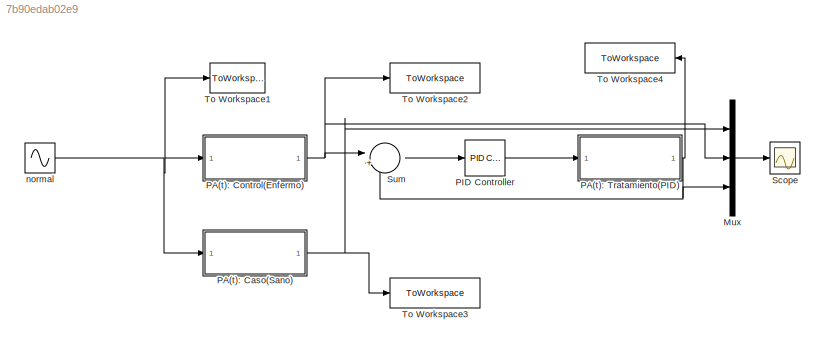
MODEL slx_7b90edab02e9
KIND model
CONFIG AbsTol = auto
CONFIG EnableMultiTasking = off
CONFIG FixedStep = auto
CONFIG MaxStep = 1e-3
CONFIG MinStep = auto
CONFIG RelTol = 1e-3
CONFIG SampleTimeConstraint = Unconstrained
CONFIG SolverName = ode15s
CONFIG StartTime = 0
CONFIG StopTime = 30
BLOCK [Mux] Mux
  DisplayOption = bar
  Inputs = 3
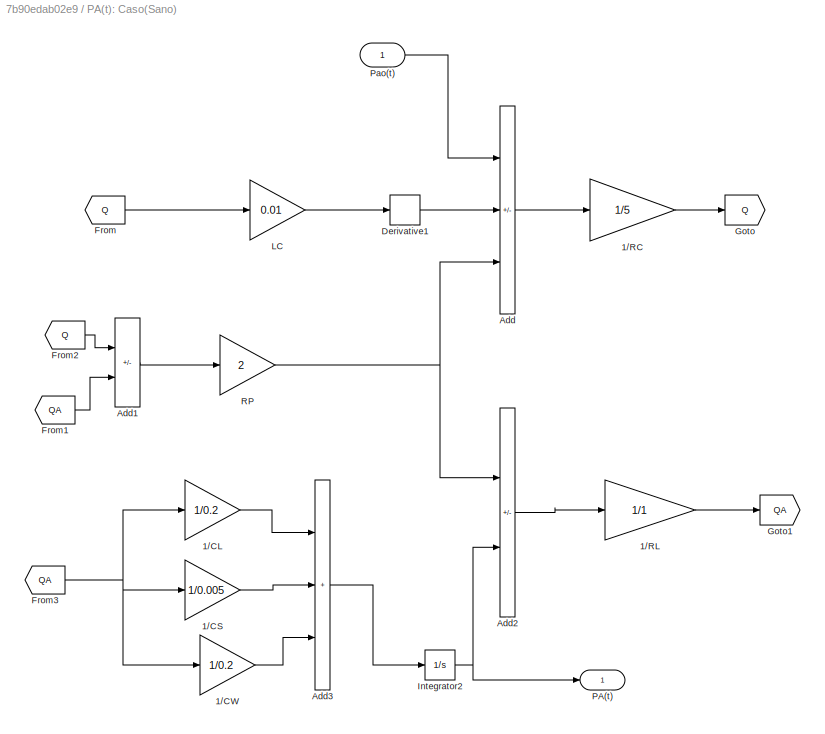
BLOCK [SubSystem] PA(t): Caso(Sano)
BLOCK [Gain] PA(t): Caso(Sano)/1//CL
  Gain = 1/0.2
BLOCK [Gain] PA(t): Caso(Sano)/1//CS
  Gain = 1/0.005
BLOCK [Gain] PA(t): Caso(Sano)/1//CW
  Gain = 1/0.2
BLOCK [Gain] PA(t): Caso(Sano)/1//RC
  Gain = 1/5
BLOCK [Gain] PA(t): Caso(Sano)/1//RL
  Gain = 1/1
BLOCK [Sum] PA(t): Caso(Sano)/Add
  IconShape = rectangular
  Inputs = +--
BLOCK [Sum] PA(t): Caso(Sano)/Add1
  IconShape = rectangular
  Inputs = +-
BLOCK [Sum] PA(t): Caso(Sano)/Add2
  IconShape = rectangular
  Inputs = +-
BLOCK [Sum] PA(t): Caso(Sano)/Add3
  IconShape = rectangular
  Inputs = +++
BLOCK [Derivative] PA(t): Caso(Sano)/Derivative1
BLOCK [From] PA(t): Caso(Sano)/From
  GotoTag = Q
BLOCK [From] PA(t): Caso(Sano)/From1
  GotoTag = QA
BLOCK [From] PA(t): Caso(Sano)/From2
  GotoTag = Q
BLOCK [From] PA(t): Caso(Sano)/From3
  GotoTag = QA
BLOCK [Goto] PA(t): Caso(Sano)/Goto
  GotoTag = Q
BLOCK [Goto] PA(t): Caso(Sano)/Goto1
  GotoTag = QA
BLOCK [Integrator] PA(t): Caso(Sano)/Integrator2
BLOCK [Gain] PA(t): Caso(Sano)/LC
  Gain = 0.01
BLOCK [Outport] PA(t): Caso(Sano)/PA(t)
BLOCK [Inport] PA(t): Caso(Sano)/Pao(t)
BLOCK [Gain] PA(t): Caso(Sano)/RP
  Gain = 2
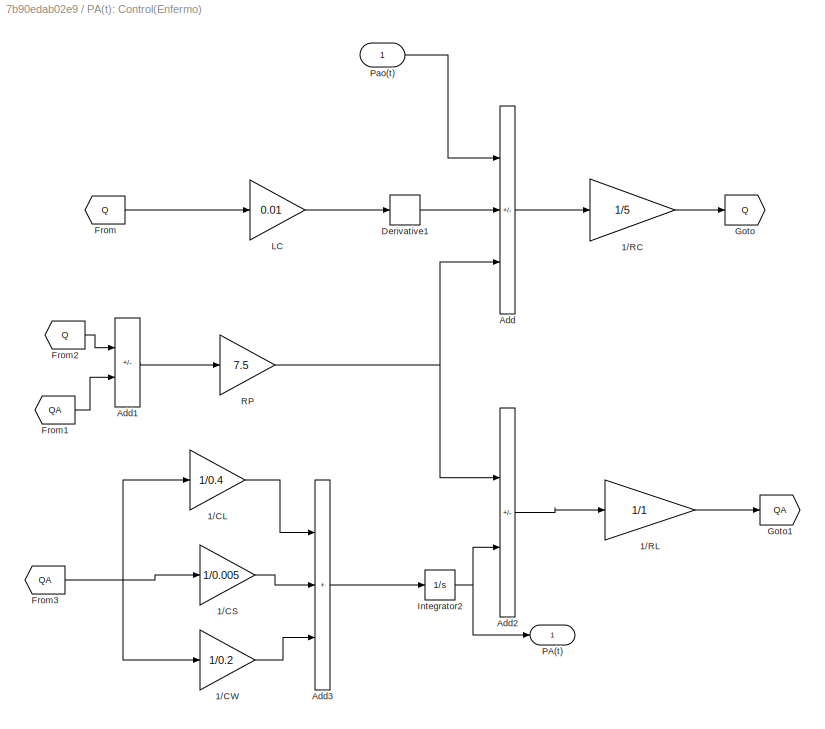
BLOCK [SubSystem] PA(t): Control(Enfermo)
BLOCK [Gain] PA(t): Control(Enfermo)/1//CL
  Gain = 1/0.4
BLOCK [Gain] PA(t): Control(Enfermo)/1//CS
  Gain = 1/0.005
BLOCK [Gain] PA(t): Control(Enfermo)/1//CW
  Gain = 1/0.2
BLOCK [Gain] PA(t): Control(Enfermo)/1//RC
  Gain = 1/5
BLOCK [Gain] PA(t): Control(Enfermo)/1//RL
  Gain = 1/1
BLOCK [Sum] PA(t): Control(Enfermo)/Add
  IconShape = rectangular
  Inputs = +--
BLOCK [Sum] PA(t): Control(Enfermo)/Add1
  IconShape = rectangular
  Inputs = +-
BLOCK [Sum] PA(t): Control(Enfermo)/Add2
  IconShape = rectangular
  Inputs = +-
BLOCK [Sum] PA(t): Control(Enfermo)/Add3
  IconShape = rectangular
  Inputs = +++
BLOCK [Derivative] PA(t): Control(Enfermo)/Derivative1
BLOCK [From] PA(t): Control(Enfermo)/From
  GotoTag = Q
BLOCK [From] PA(t): Control(Enfermo)/From1
  GotoTag = QA
BLOCK [From] PA(t): Control(Enfermo)/From2
  GotoTag = Q
BLOCK [From] PA(t): Control(Enfermo)/From3
  GotoTag = QA
BLOCK [Goto] PA(t): Control(Enfermo)/Goto
  GotoTag = Q
BLOCK [Goto] PA(t): Control(Enfermo)/Goto1
  GotoTag = QA
BLOCK [Integrator] PA(t): Control(Enfermo)/Integrator2
BLOCK [Gain] PA(t): Control(Enfermo)/LC
  Gain = 0.01
BLOCK [Outport] PA(t): Control(Enfermo)/PA(t)
BLOCK [Inport] PA(t): Control(Enfermo)/Pao(t)
BLOCK [Gain] PA(t): Control(Enfermo)/RP
  Gain = 7.5
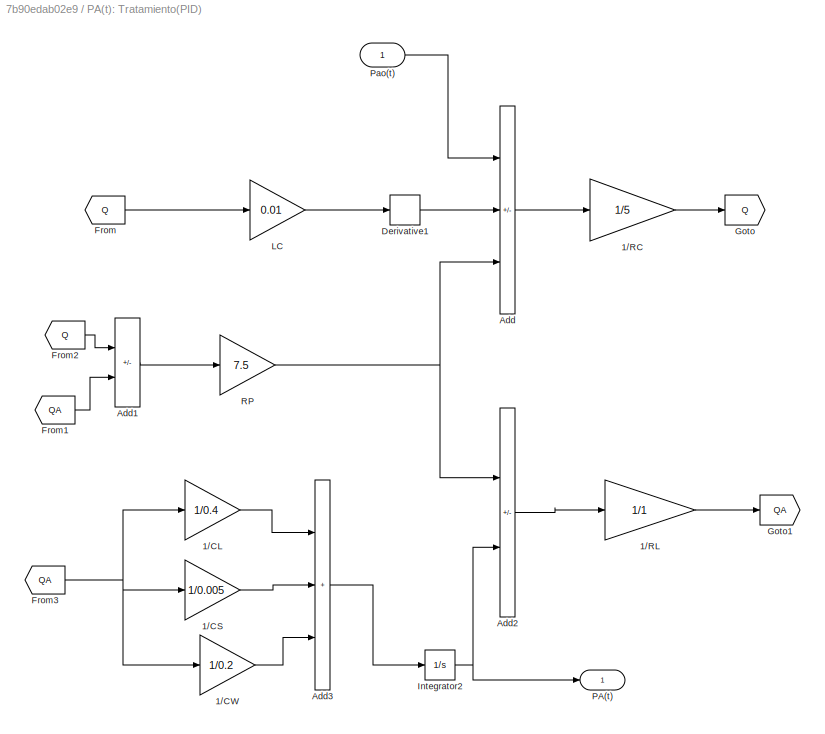
BLOCK [SubSystem] PA(t): Tratamiento(PID)
BLOCK [Gain] PA(t): Tratamiento(PID)/1//CL
  Gain = 1/0.4
BLOCK [Gain] PA(t): Tratamiento(PID)/1//CS
  Gain = 1/0.005
BLOCK [Gain] PA(t): Tratamiento(PID)/1//CW
  Gain = 1/0.2
BLOCK [Gain] PA(t): Tratamiento(PID)/1//RC
  Gain = 1/5
BLOCK [Gain] PA(t): Tratamiento(PID)/1//RL
  Gain = 1/1
BLOCK [Sum] PA(t): Tratamiento(PID)/Add
  IconShape = rectangular
  Inputs = +--
BLOCK [Sum] PA(t): Tratamiento(PID)/Add1
  IconShape = rectangular
  Inputs = +-
BLOCK [Sum] PA(t): Tratamiento(PID)/Add2
  IconShape = rectangular
  Inputs = +-
BLOCK [Sum] PA(t): Tratamiento(PID)/Add3
  IconShape = rectangular
  Inputs = +++
BLOCK [Derivative] PA(t): Tratamiento(PID)/Derivative1
BLOCK [From] PA(t): Tratamiento(PID)/From
  GotoTag = Q
BLOCK [From] PA(t): Tratamiento(PID)/From1
  GotoTag = QA
BLOCK [From] PA(t): Tratamiento(PID)/From2
  GotoTag = Q
BLOCK [From] PA(t): Tratamiento(PID)/From3
  GotoTag = QA
BLOCK [Goto] PA(t): Tratamiento(PID)/Goto
  GotoTag = Q
BLOCK [Goto] PA(t): Tratamiento(PID)/Goto1
  GotoTag = QA
BLOCK [Integrator] PA(t): Tratamiento(PID)/Integrator2
BLOCK [Gain] PA(t): Tratamiento(PID)/LC
  Gain = 0.01
BLOCK [Outport] PA(t): Tratamiento(PID)/PA(t)
BLOCK [Inport] PA(t): Tratamiento(PID)/Pao(t)
BLOCK [Gain] PA(t): Tratamiento(PID)/RP
  Gain = 7.5
BLOCK [Reference] PID Controller  REF=slpidlib/PID Controller
  LibrarySourceBlock = simulink/Continuous/PID Controller
  SourceBlock = slpidlib/PID Controller
  SourceType = PID 1dof
BLOCK [Scope] Scope
  Floating = off
  NumInputPorts = 1
  ScopeSpecificationString = Simulink.scopes.TimeScopeBlockCfg('CurrentConfiguration', extmgr.ConfigurationSet(extmgr.Configuration('Core','General UI',true),extmgr.Configuration('Core','Source UI',true),extmgr.Configuration('Sources','WiredSimulink',true),extmgr.Configuration('Visuals','Time Domain',true,'SerializedDisplays',{struct('MinYLimReal','-0.74969','MaxYLimReal','0.74969','YLabelReal','','MinYLimMag','0.00000','MaxY...<+1803ch>
BLOCK [Sum] Sum
  Inputs = |+-
BLOCK [ToWorkspace] To Workspace1
  FixptAsFi = on
  MaxDataPoints = inf
  SampleTime = -1
  VariableName = Pao
BLOCK [ToWorkspace] To Workspace2
  FixptAsFi = on
  MaxDataPoints = inf
  SampleTime = -1
  VariableName = PAx
BLOCK [ToWorkspace] To Workspace3
  FixptAsFi = on
  MaxDataPoints = inf
  SampleTime = -1
  VariableName = PAy
BLOCK [ToWorkspace] To Workspace4
  FixptAsFi = on
  MaxDataPoints = inf
  SampleTime = -1
  VariableName = PAz
BLOCK [Sin] normal
  Frequency = pi/2
  SampleTime = 0
LINE Mux:1 -> Scope:1
LINE PA(t): Caso(Sano)/1//CL:1 -> PA(t): Caso(Sano)/Add3:1
LINE PA(t): Caso(Sano)/1//CS:1 -> PA(t): Caso(Sano)/Add3:2
LINE PA(t): Caso(Sano)/1//CW:1 -> PA(t): Caso(Sano)/Add3:3
LINE PA(t): Caso(Sano)/1//RC:1 -> PA(t): Caso(Sano)/Goto:1
LINE PA(t): Caso(Sano)/1//RL:1 -> PA(t): Caso(Sano)/Goto1:1
LINE PA(t): Caso(Sano)/Add1:1 -> PA(t): Caso(Sano)/RP:1
LINE PA(t): Caso(Sano)/Add2:1 -> PA(t): Caso(Sano)/1//RL:1
LINE PA(t): Caso(Sano)/Add3:1 -> PA(t): Caso(Sano)/Integrator2:1
LINE PA(t): Caso(Sano)/Add:1 -> PA(t): Caso(Sano)/1//RC:1
LINE PA(t): Caso(Sano)/Derivative1:1 -> PA(t): Caso(Sano)/Add:2
LINE PA(t): Caso(Sano)/From1:1 -> PA(t): Caso(Sano)/Add1:2
LINE PA(t): Caso(Sano)/From2:1 -> PA(t): Caso(Sano)/Add1:1
NET PA(t): Caso(Sano)/From3:1 -> PA(t): Caso(Sano)/1//CL:1, PA(t): Caso(Sano)/1//CS:1, PA(t): Caso(Sano)/1//CW:1
LINE PA(t): Caso(Sano)/From:1 -> PA(t): Caso(Sano)/LC:1
NET PA(t): Caso(Sano)/Integrator2:1 -> PA(t): Caso(Sano)/Add2:2, PA(t): Caso(Sano)/PA(t):1
LINE PA(t): Caso(Sano)/LC:1 -> PA(t): Caso(Sano)/Derivative1:1
LINE PA(t): Caso(Sano)/Pao(t):1 -> PA(t): Caso(Sano)/Add:1
NET PA(t): Caso(Sano)/RP:1 -> PA(t): Caso(Sano)/Add2:1, PA(t): Caso(Sano)/Add:3
NET PA(t): Caso(Sano):1 -> Mux:1, To Workspace3:1
LINE PA(t): Control(Enfermo)/1//CL:1 -> PA(t): Control(Enfermo)/Add3:1
LINE PA(t): Control(Enfermo)/1//CS:1 -> PA(t): Control(Enfermo)/Add3:2
LINE PA(t): Control(Enfermo)/1//CW:1 -> PA(t): Control(Enfermo)/Add3:3
LINE PA(t): Control(Enfermo)/1//RC:1 -> PA(t): Control(Enfermo)/Goto:1
LINE PA(t): Control(Enfermo)/1//RL:1 -> PA(t): Control(Enfermo)/Goto1:1
LINE PA(t): Control(Enfermo)/Add1:1 -> PA(t): Control(Enfermo)/RP:1
LINE PA(t): Control(Enfermo)/Add2:1 -> PA(t): Control(Enfermo)/1//RL:1
LINE PA(t): Control(Enfermo)/Add3:1 -> PA(t): Control(Enfermo)/Integrator2:1
LINE PA(t): Control(Enfermo)/Add:1 -> PA(t): Control(Enfermo)/1//RC:1
LINE PA(t): Control(Enfermo)/Derivative1:1 -> PA(t): Control(Enfermo)/Add:2
LINE PA(t): Control(Enfermo)/From1:1 -> PA(t): Control(Enfermo)/Add1:2
LINE PA(t): Control(Enfermo)/From2:1 -> PA(t): Control(Enfermo)/Add1:1
NET PA(t): Control(Enfermo)/From3:1 -> PA(t): Control(Enfermo)/1//CL:1, PA(t): Control(Enfermo)/1//CS:1, PA(t): Control(Enfermo)/1//CW:1
LINE PA(t): Control(Enfermo)/From:1 -> PA(t): Control(Enfermo)/LC:1
NET PA(t): Control(Enfermo)/Integrator2:1 -> PA(t): Control(Enfermo)/Add2:2, PA(t): Control(Enfermo)/PA(t):1
LINE PA(t): Control(Enfermo)/LC:1 -> PA(t): Control(Enfermo)/Derivative1:1
LINE PA(t): Control(Enfermo)/Pao(t):1 -> PA(t): Control(Enfermo)/Add:1
NET PA(t): Control(Enfermo)/RP:1 -> PA(t): Control(Enfermo)/Add2:1, PA(t): Control(Enfermo)/Add:3
NET PA(t): Control(Enfermo):1 -> Mux:2, Sum:1, To Workspace2:1
LINE PA(t): Tratamiento(PID)/1//CL:1 -> PA(t): Tratamiento(PID)/Add3:1
LINE PA(t): Tratamiento(PID)/1//CS:1 -> PA(t): Tratamiento(PID)/Add3:2
LINE PA(t): Tratamiento(PID)/1//CW:1 -> PA(t): Tratamiento(PID)/Add3:3
LINE PA(t): Tratamiento(PID)/1//RC:1 -> PA(t): Tratamiento(PID)/Goto:1
LINE PA(t): Tratamiento(PID)/1//RL:1 -> PA(t): Tratamiento(PID)/Goto1:1
LINE PA(t): Tratamiento(PID)/Add1:1 -> PA(t): Tratamiento(PID)/RP:1
LINE PA(t): Tratamiento(PID)/Add2:1 -> PA(t): Tratamiento(PID)/1//RL:1
LINE PA(t): Tratamiento(PID)/Add3:1 -> PA(t): Tratamiento(PID)/Integrator2:1
LINE PA(t): Tratamiento(PID)/Add:1 -> PA(t): Tratamiento(PID)/1//RC:1
LINE PA(t): Tratamiento(PID)/Derivative1:1 -> PA(t): Tratamiento(PID)/Add:2
LINE PA(t): Tratamiento(PID)/From1:1 -> PA(t): Tratamiento(PID)/Add1:2
LINE PA(t): Tratamiento(PID)/From2:1 -> PA(t): Tratamiento(PID)/Add1:1
NET PA(t): Tratamiento(PID)/From3:1 -> PA(t): Tratamiento(PID)/1//CL:1, PA(t): Tratamiento(PID)/1//CS:1, PA(t): Tratamiento(PID)/1//CW:1
LINE PA(t): Tratamiento(PID)/From:1 -> PA(t): Tratamiento(PID)/LC:1
NET PA(t): Tratamiento(PID)/Integrator2:1 -> PA(t): Tratamiento(PID)/Add2:2, PA(t): Tratamiento(PID)/PA(t):1
LINE PA(t): Tratamiento(PID)/LC:1 -> PA(t): Tratamiento(PID)/Derivative1:1
LINE PA(t): Tratamiento(PID)/Pao(t):1 -> PA(t): Tratamiento(PID)/Add:1
NET PA(t): Tratamiento(PID)/RP:1 -> PA(t): Tratamiento(PID)/Add2:1, PA(t): Tratamiento(PID)/Add:3
NET PA(t): Tratamiento(PID):1 -> Mux:3, Sum:2, To Workspace4:1
LINE PID Controller:1 -> PA(t): Tratamiento(PID):1
LINE Sum:1 -> PID Controller:1
NET normal:1 -> PA(t): Caso(Sano):1, PA(t): Control(Enfermo):1, To Workspace1:1
note: NET lines group one-source signal fan-out (src -> all destinations, sorted); 1:1 wires keep LINE
